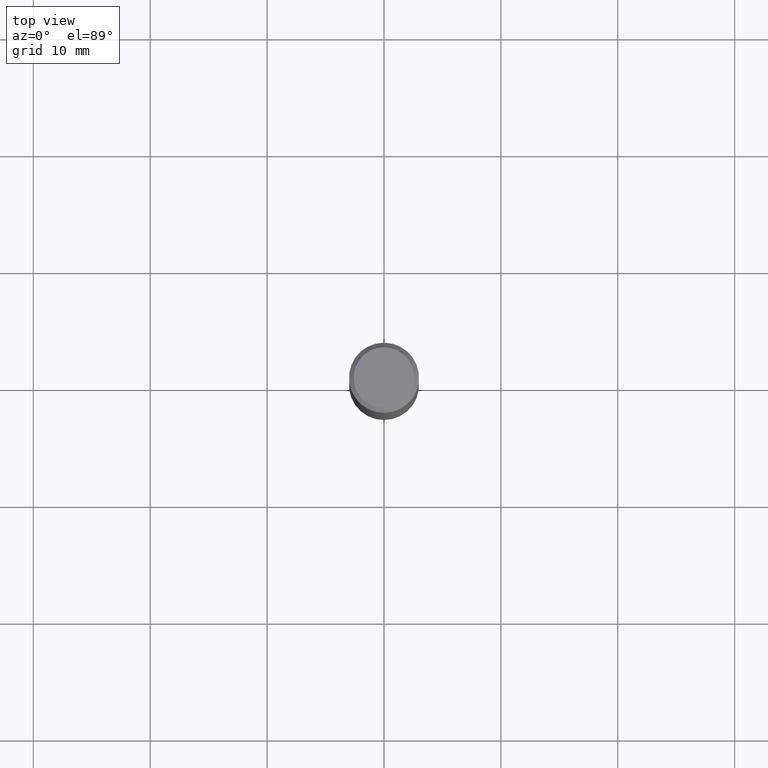
[diagram: clean part render]
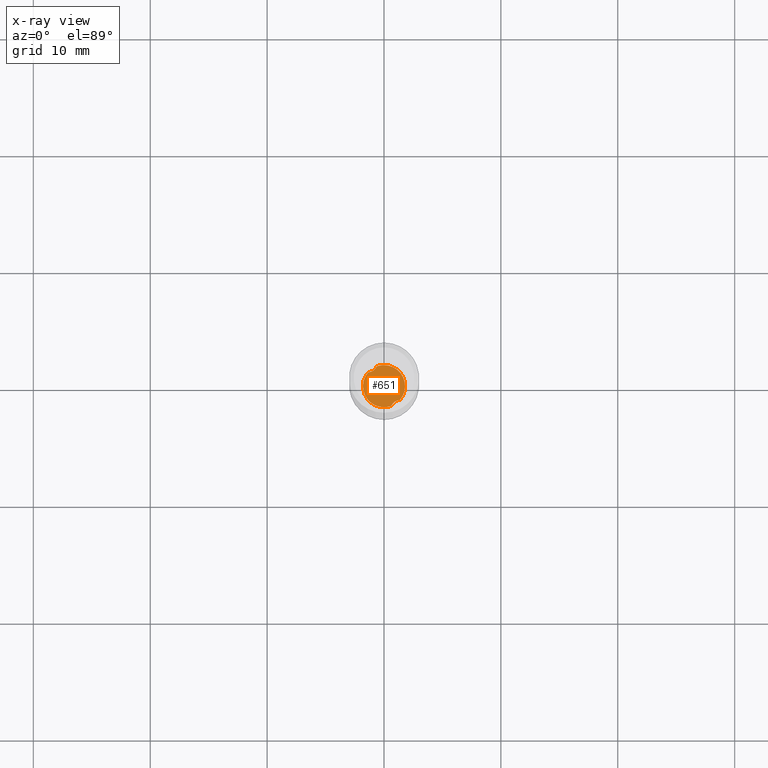
[diagram: x-ray — body ghosted, one internal face saturated and labeled with its STEP entity id]
A machine part, top view, then the same camera in x-ray: the body is ghosted and one INTERNAL B-rep face — a face not visible from any outside direction — is saturated and labeled: STEP entity #651.
In plain terms, the highlighted planar face has unit normal (-0, 0, 1).
Its self-contained STEP definition (entity closure, byte-faithful):
#273=VERTEX_POINT('',#764);
#357=VERTEX_POINT('',#857);
#401=EDGE_CURVE('',#523,#357,#906,.T.);
#421=EDGE_CURVE('',#501,#273,#927,.T.);
#433=EDGE_CURVE('',#523,#701,#941,.T.);
#459=EDGE_CURVE('',#501,#679,#969,.T.);
#479=EDGE_CURVE('',#679,#357,#990,.T.);
#501=VERTEX_POINT('',#1015);
#523=VERTEX_POINT('',#1038);
#651=ADVANCED_FACE('',(#1174),#1175,.T.);
#679=VERTEX_POINT('',#1208);
#701=VERTEX_POINT('',#1232);
#705=EDGE_CURVE('',#701,#273,#1236,.T.);
#764=CARTESIAN_POINT('',(-1.36218435057644,1.17647516125273,-42.0));
#857=CARTESIAN_POINT('',(1.36218435057645,-1.17647516125272,-42.0));
#906=B_SPLINE_CURVE_WITH_KNOTS('',3,(#2358,#2359,#2360,#2361,#2362,#2363,#2364,#2365,#2366,#2367,#2368,#2369),.UNSPECIFIED.,.F.,.F.,(4,2,2,2,2,4),(0.0,0.395731459812612,0.754899251727717,1.1134423625645,1.3630942581918,1.62468969776199),.UNSPECIFIED.);
#927=B_SPLINE_CURVE_WITH_KNOTS('',3,(#2436,#2437,#2438,#2439,#2440,#2441,#2442,#2443,#2444,#2445,#2446,#2447),.UNSPECIFIED.,.F.,.F.,(4,2,2,2,2,4),(0.0,0.395731459812609,0.754899251727813,1.11344236256471,1.36309425819205,1.6246896977623),.UNSPECIFIED.);
#941=CIRCLE('',#2466,1.7999);
#969=CIRCLE('',#2663,1.7999);
#990=CIRCLE('',#2693,1.7999);
#1015=CARTESIAN_POINT('',(-0.616511605285278,1.69102142226187,-42.0));
#1038=CARTESIAN_POINT('',(0.61651160528528,-1.69102142226187,-42.0));
#1174=FACE_OUTER_BOUND('',#3680,.T.);
#1175=PLANE('',#3681);
#1208=CARTESIAN_POINT('',(-2.23646924370769E-016,1.7999,-42.0));
#1232=CARTESIAN_POINT('',(2.23646924384965E-016,-1.7999,-42.0));
#1236=CIRCLE('',#4914,1.7999);
#2358=CARTESIAN_POINT('',(0.554376291141574,-1.8499,-42.0));
#2359=CARTESIAN_POINT('',(0.59243790848526,-1.72360000094481,-42.0));
#2360=CARTESIAN_POINT('',(0.652643457735022,-1.60596378219404,-41.9999999999934));
#2361=CARTESIAN_POINT('',(0.811974679552807,-1.41195060961571,-41.9999999999934));
#2362=CARTESIAN_POINT('',(0.904288509086653,-1.33616417580513,-42.0000000000003));
#2363=CARTESIAN_POINT('',(1.11512382324025,-1.22455808677533,-42.0000000000003));
#2364=CARTESIAN_POINT('',(1.22979348108261,-1.19066640908653,-42.0));
#2365=CARTESIAN_POINT('',(1.43099192433363,-1.16895290825091,-42.0));
#2366=CARTESIAN_POINT('',(1.5143186852072,-1.17038420490539,-42.0));
#2367=CARTESIAN_POINT('',(1.68312131599488,-1.1921952736277,-42.0));
#2368=CARTESIAN_POINT('',(1.76796644748831,-1.21339975205665,-42.0));
#2369=CARTESIAN_POINT('',(1.8499,-1.24308582442074,-42.0));
#2436=CARTESIAN_POINT('',(-0.554376291141574,1.8499,-42.0));
#2437=CARTESIAN_POINT('',(-0.59243790848526,1.72360000094481,-42.0));
#2438=CARTESIAN_POINT('',(-0.652643457735021,1.60596378219404,-41.9999999999934));
#2439=CARTESIAN_POINT('',(-0.811974679552828,1.41195060961569,-41.9999999999934));
#2440=CARTESIAN_POINT('',(-0.904288509086672,1.33616417580513,-42.0000000000003));
#2441=CARTESIAN_POINT('',(-1.11512382324025,1.22455808677535,-42.0000000000003));
#2442=CARTESIAN_POINT('',(-1.22979348108259,1.19066640908653,-42.0));
#2443=CARTESIAN_POINT('',(-1.43099192433364,1.16895290825092,-42.0));
#2444=CARTESIAN_POINT('',(-1.51431868520721,1.1703842049054,-42.0));
#2445=CARTESIAN_POINT('',(-1.68312131599488,1.1921952736277,-42.0));
#2446=CARTESIAN_POINT('',(-1.7679664474883,1.21339975205665,-42.0));
#2447=CARTESIAN_POINT('',(-1.8499,1.24308582442074,-42.0));
#2466=AXIS2_PLACEMENT_3D('',#5368,#5369,#5370);
#2663=AXIS2_PLACEMENT_3D('',#5405,#5406,#5407);
#2693=AXIS2_PLACEMENT_3D('',#5427,#5428,#5429);
#3680=EDGE_LOOP('',(#5611,#5612,#5613,#5614,#5615,#5616));
#3681=AXIS2_PLACEMENT_3D('',#5617,#5618,#5619);
#4914=AXIS2_PLACEMENT_3D('',#5711,#5712,#5713);
#5368=CARTESIAN_POINT('',(0.0,0.0,-42.0));
#5369=DIRECTION('',(0.0,0.0,-1.0));
#5370=DIRECTION('',(0.0,1.0,0.0));
#5405=CARTESIAN_POINT('',(0.0,0.0,-42.0));
#5406=DIRECTION('',(0.0,0.0,-1.0));
#5407=DIRECTION('',(0.0,1.0,0.0));
#5427=CARTESIAN_POINT('',(0.0,0.0,-42.0));
#5428=DIRECTION('',(0.0,0.0,-1.0));
#5429=DIRECTION('',(0.0,1.0,0.0));
#5611=ORIENTED_EDGE('',*,*,#401,.T.);
#5612=ORIENTED_EDGE('',*,*,#479,.F.);
#5613=ORIENTED_EDGE('',*,*,#459,.F.);
#5614=ORIENTED_EDGE('',*,*,#421,.T.);
#5615=ORIENTED_EDGE('',*,*,#705,.F.);
#5616=ORIENTED_EDGE('',*,*,#433,.F.);
#5617=CARTESIAN_POINT('',(0.0,0.89995,-42.0));
#5618=DIRECTION('',(-0.0,0.0,1.0));
#5619=DIRECTION('',(0.0,-1.0,0.0));
#5711=CARTESIAN_POINT('',(0.0,0.0,-42.0));
#5712=DIRECTION('',(0.0,0.0,-1.0));
#5713=DIRECTION('',(0.0,1.0,0.0));